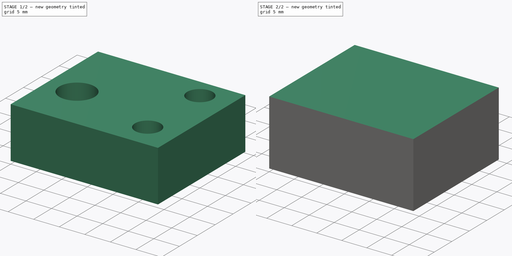
[diagram: build sequence overview — one tinted view per stage of 2, left to right]
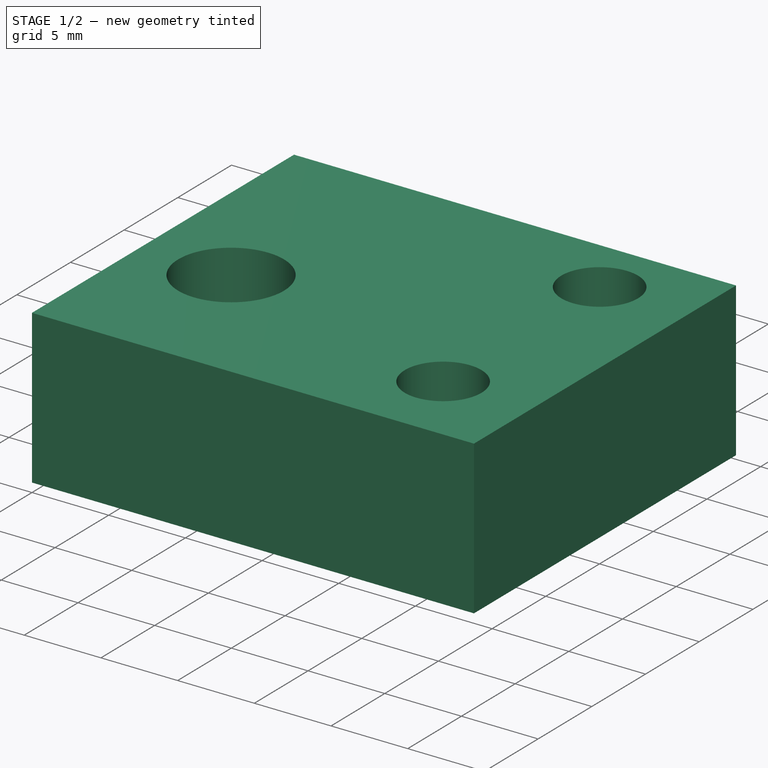
[diagram: stage 1 of 2 — iso view after this stage's code; geometry added in this stage tinted green]
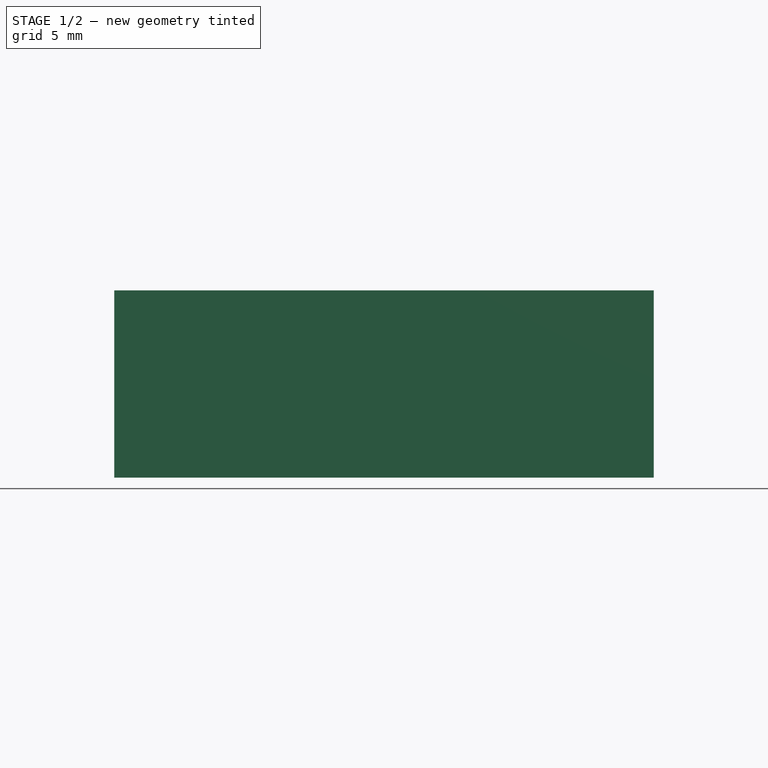
[diagram: stage 1 of 2 — front view after this stage's code; geometry added in this stage tinted green]
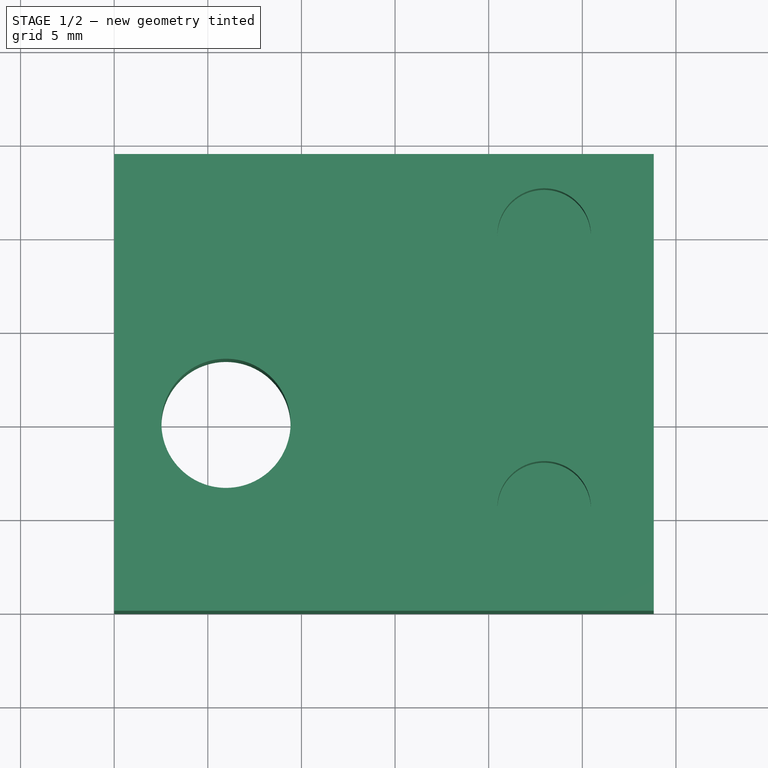
[diagram: stage 1 of 2 — top view after this stage's code; geometry added in this stage tinted green]
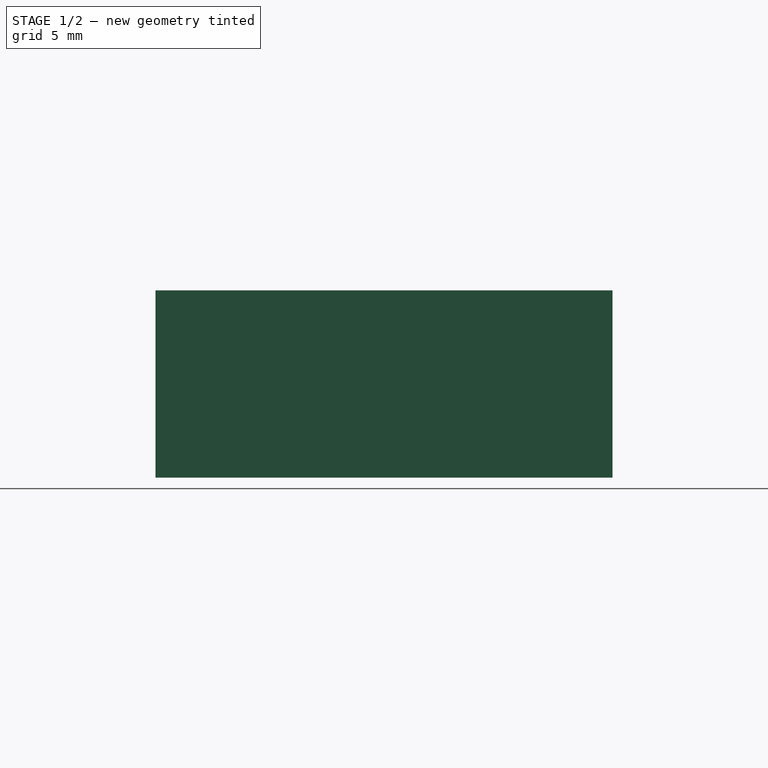
[diagram: stage 1 of 2 — right view after this stage's code; geometry added in this stage tinted green]
FCSTD DOCUMENT  (FreeCAD 0.20R29410 (Git))
Label: Assembly
License: All rights reserved
LicenseURL: http://en.wikipedia.org/wiki/All_rights_reserved
objects: App::FeaturePython×13, App::DocumentObjectGroupPython×5, App::DocumentObjectGroup×3, Sketcher::SketchObject×2, PartDesign::CoordinateSystem×2, App::Part×2, PartDesign::Pad×1, PartDesign::Pocket×1, App::Link×1
note: 8 computed .brp shape members not serialized (recipe doc carries the construction recipe); baked Part::Feature solids carry a one-line shape summary decoded from their .brp

FEATURE [Sketcher::SketchObject] Sketch002
  FullyConstrained = false
  MapMode = 2
  Placement = pos=(0,0,10) rot=(0,0,1;0rad)
  Support = -> [Sketch002]
  sketch-geometry (3):
    g0: Circle CenterX=22.9601 CenterY=5.49585 CenterZ=0 NormalX=0 NormalY=0 NormalZ=1 AngleXU=0 Radius=2.5
    g1: Circle CenterX=22.9601 CenterY=20.0674 CenterZ=0 NormalX=0 NormalY=0 NormalZ=1 AngleXU=0 Radius=2.5
    g2: LineSegment StartX=22.9601 StartY=5.49585 StartZ=0 EndX=22.9601 EndY=20.0674 EndZ=0
  constraints (5):
    c: Coincident(g2,g0)
    c: Coincident(g2,g1)
    c: Vertical(g2)
    c: Equal(g1,g0)
    c: Diameter(g1) = 5
FEATURE [PartDesign::Pocket] Pocket001
  Direction = (0,0,-1)
  Length = 5
  Length2 = 5
  Profile = -> Sketch002
  ReferenceAxis = -> Sketch002 [N_Axis]
  Type = 0
FEATURE [App::FeaturePython] AnnotationPlane  label="AP1"  # WARN: FeaturePython — macro-defined, semantics opaque (R4)
  Direction = (0,-1,0)
  Offset = -10
  PointWithOffset = (14.4087,10,5)
  faces = -> Pocket001 [Face1]
  p1 = (14.4087,0,5)
FEATURE [App::FeaturePython] GeometricTolerance  label="GT1"  # WARN: FeaturePython — macro-defined, semantics opaque (R4)
  Characteristic = Perpendicularity
  CharacteristicCode = ⏊
  CharacteristicIcon = :/dd/icons/Characteristic/perpendicularity.svg
  Circumference = true
  FeatureControlFrame = Projected tolerance zone
  FeatureControlFrameCode = Ⓜ
  FeatureControlFrameIcon = :/dd/icons/FeatureControlFrame/maximumMaterialCondition.svg
  ToleranceValue = -0.9
FEATURE [App::FeaturePython] GeometricTolerance001  label="GT2"  # WARN: FeaturePython — macro-defined, semantics opaque (R4)
  Characteristic = Cylindricity
  CharacteristicCode = ⌭
  CharacteristicIcon = :/dd/icons/Characteristic/cylindricity.svg
  Circumference = true
  FeatureControlFrameCode = Ⓟ
  FeatureControlFrameIcon = :/dd/icons/FeatureControlFrame/projectedToleranceZone.svg
  ToleranceValue = 0.5
FEATURE [App::FeaturePython] DatumFeature  label="A"  # WARN: FeaturePython — macro-defined, semantics opaque (R4)
FEATURE [App::DocumentObjectGroupPython] Annotation5  # scripted group (container) (typed FeaturePython)
  AP = -> AnnotationPlane
  DF = -> DatumFeature
  Direction = (0,0,-1)
  Group = -> [DatumFeature]
  circumferenceBool = false
  diameter = 0
  faces = -> [Pocket001]
  highLimit = 0
  lowLimit = 0
  p1 = (14.8825,10,0)
  selectedPoint = (15,10,0)
  spBool = true
  toleranceDiameter = 0
  toleranceSelectBool = true
FEATURE [App::FeaturePython] DatumSystem  label="DS1: A"  # WARN: FeaturePython — macro-defined, semantics opaque (R4)
  Primary = -> DatumFeature
FEATURE [App::FeaturePython] DatumFeature001  label="B"  # WARN: FeaturePython — macro-defined, semantics opaque (R4)
FEATURE [App::DocumentObjectGroupPython] Annotation2  # scripted group (container) (typed FeaturePython)
  AP = -> AnnotationPlane
  DF = -> DatumFeature001
  Direction = (0,0,1)
  GT = -> [GeometricTolerance,GeometricTolerance001]
  Group = -> [GeometricTolerance,GeometricTolerance001,DatumFeature001]
  circumferenceBool = false
  diameter = 6.89909
  faces = -> [Pocket001]
  highLimit = 0
  lowLimit = 0
  p1 = (14.3762,10,10)
  selectedPoint = (18.5,10,20)
  spBool = true
  toleranceDiameter = 0
  toleranceSelectBool = true
FEATURE [App::FeaturePython] DatumSystem001  label="DS2: B"  # WARN: FeaturePython — macro-defined, semantics opaque (R4)
  Primary = -> DatumFeature001
FEATURE [App::FeaturePython] DatumSystem002  label="DS3: A | B"  # WARN: FeaturePython — macro-defined, semantics opaque (R4)
  Primary = -> DatumFeature
  Secondary = -> DatumFeature001
FEATURE [App::FeaturePython] GeometricTolerance002  label="GT3"  # WARN: FeaturePython — macro-defined, semantics opaque (R4)
  Characteristic = Cylindricity
  CharacteristicCode = ⌭
  CharacteristicIcon = :/dd/icons/Characteristic/cylindricity.svg
  Circumference = true
  DS = -> DatumSystem002
  FeatureControlFrame = Maximum material condition
  ToleranceValue = 0.175
FEATURE [App::DocumentObjectGroupPython] Annotation4  # scripted group (container) (typed FeaturePython)
  AP = -> AnnotationPlane
  Direction = (0,-1,0)
  GT = -> [GeometricTolerance002]
  Group = -> [GeometricTolerance002]
  circumferenceBool = true
  diameter = 5
  faces = -> [Pocket001]
  highLimit = 0
  lowLimit = 0
  p1 = (25.4601,5.49585,10)
  selectedPoint = (30,0,15)
  spBool = true
  toleranceDiameter = 0.02
  toleranceSelectBool = true
FEATURE [App::FeaturePython] AnnotationPlane001  label="AP2"  # WARN: FeaturePython — macro-defined, semantics opaque (R4)
  Direction = (0,0,1)
  Offset = -4
  PointWithOffset = (14.3762,12.2946,6)
  faces = -> Pocket001 [Face5]
  p1 = (14.3762,12.2946,10)
FEATURE [App::FeaturePython] DatumFeature002  label="C"  # WARN: FeaturePython — macro-defined, semantics opaque (R4)
FEATURE [App::DocumentObjectGroupPython] Annotation4001  # scripted group (container) (typed FeaturePython)
  AP = -> AnnotationPlane
  DF = -> DatumFeature002
  Direction = (1,0,0)
  Group = -> [DatumFeature002]
  circumferenceBool = false
  diameter = 0
  faces = -> [Pocket001]
  highLimit = 0
  lowLimit = 0
  p1 = (28.8174,10,5)
  selectedPoint = (34.4087,10,6)
  spBool = true
  toleranceDiameter = 0
  toleranceSelectBool = true
FEATURE [App::FeaturePython] DatumSystem003  label="DS4: C"  # WARN: FeaturePython — macro-defined, semantics opaque (R4)
  Primary = -> DatumFeature002
FEATURE [App::DocumentObjectGroupPython] GDT  # scripted group (container) (typed FeaturePython)
  Group = -> [Annotation2,Annotation4,Annotation5,DatumSystem,DatumSystem001,DatumSystem002,AnnotationPlane001,Annotation4001,DatumSystem003]
FEATURE [PartDesign::CoordinateSystem] LCS_0
  AttacherType = Attacher::AttachEngine3D
  MapMode = 2
  Support = -> [X_Axis]
FEATURE [App::Part] Part
  Group = -> [LCS_0,Annotation2,Annotation5,Annotation4001,Annotation4,AnnotationPlane,GeometricTolerance001,GeometricTolerance002,DatumSystem,DatumSystem001,DatumSystem002,AnnotationPlane001,DatumFeature002,DatumFeature001,DatumFeature,DatumSystem003,GeometricTolerance,Sketch,Pad,Sketch002,Pocket001,GDT]
  Origin = -> Origin
FEATURE [App::DocumentObjectGroup] Parts
  Group = -> [Part]
FEATURE [PartDesign::CoordinateSystem] LCS_Origin
  AttacherType = Attacher::AttachEngine3D
  AttachmentOffset = pos=(0,16,0) rot=(0,0,1;0rad)
  MapMode = 2
  Placement = pos=(0,16,0) rot=(0,0,1;0rad)
  Support = -> [X_Axis002]
FEATURE [App::DocumentObjectGroup] Constraints
FEATURE [App::FeaturePython] Variables  # WARN: FeaturePython — macro-defined, semantics opaque (R4)
  Type = App::PropertyContainer
FEATURE [App::DocumentObjectGroup] Configurations
FEATURE [App::Link] Part001
  AssemblyType = Part::Link
  AttachedBy = #LCS_0
  AttachedTo = Parent Assembly#LCS_Origin
  AttachmentOffset = pos=(0,10,0) rot=(0,1,0;1.5708rad)
  LinkPlacement = pos=(0,26,0) rot=(0,1,0;1.5708rad)
  LinkedObject = -> Part
  Placement = pos=(0,26,0) rot=(0,1,0;1.5708rad)
  SolverId = Asm4EE
  expr: Placement = LCS_Origin.Placement * AttachmentOffset * LCS_0.Placement ^ -1
FEATURE [App::Part] Model
  AssemblyType = Part::Link
  Group = -> [LCS_Origin,Constraints,Variables,Configurations,Part001]
  Origin = -> Origin002
  Type = Assembly
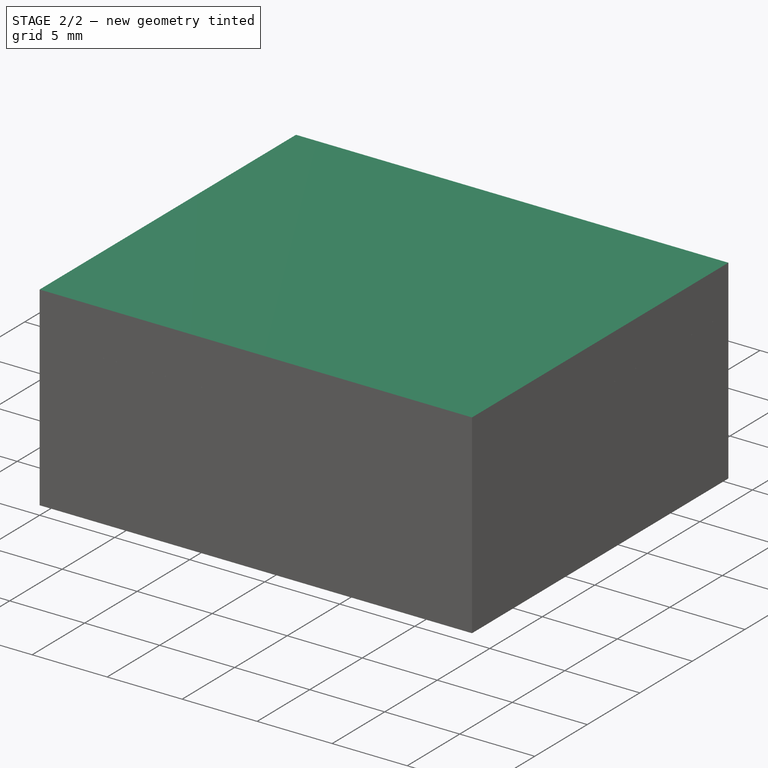
[diagram: stage 2 of 2 — iso view after this stage's code; geometry added in this stage tinted green]
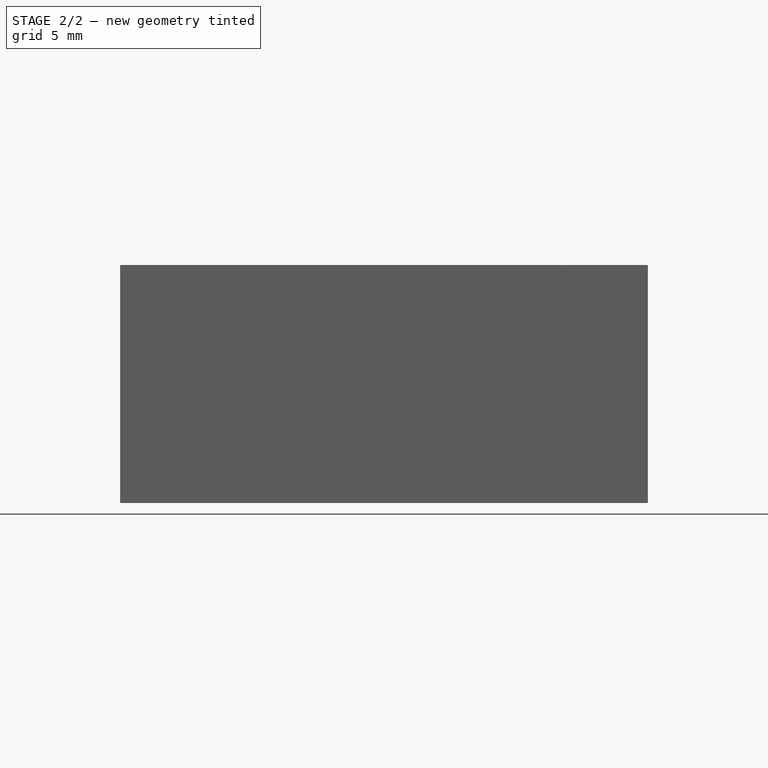
[diagram: stage 2 of 2 — front view after this stage's code; geometry added in this stage tinted green]
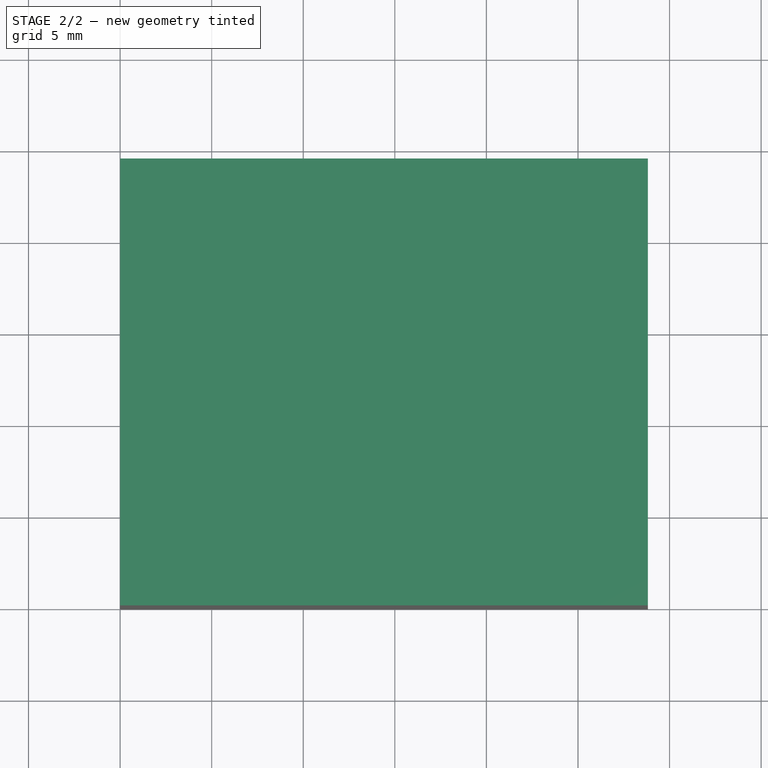
[diagram: stage 2 of 2 — top view after this stage's code; geometry added in this stage tinted green]
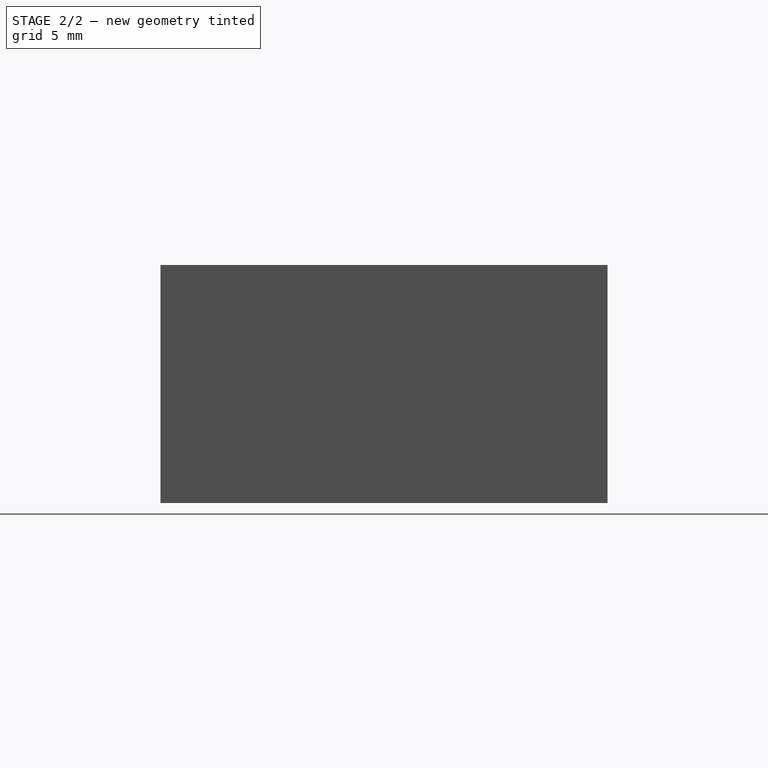
[diagram: stage 2 of 2 — right view after this stage's code; geometry added in this stage tinted green]
FEATURE [Sketcher::SketchObject] Sketch
  FullyConstrained = false
  MapMode = 2
  Support = -> [Sketch]
  sketch-geometry (4):
    g0: LineSegment StartX=0 StartY=0 StartZ=0 EndX=28.8174 EndY=0 EndZ=0
    g1: LineSegment StartX=28.8174 StartY=0 StartZ=0 EndX=28.8174 EndY=24.4012 EndZ=0
    g2: LineSegment StartX=28.8174 StartY=24.4012 StartZ=0 EndX=0 EndY=24.4012 EndZ=0
    g3: LineSegment StartX=0 StartY=24.4012 StartZ=0 EndX=0 EndY=0 EndZ=0
  constraints (9):
    c: Coincident(g0,g1)
    c: Coincident(g1,g2)
    c: Coincident(g2,g3)
    c: Coincident(g3,g0)
    c: Horizontal(g0)
    c: Horizontal(g2)
    c: Vertical(g1)
    c: Vertical(g3)
    c: Coincident(g0,g-1)
FEATURE [PartDesign::Pad] Pad
  Direction = (0,0,1)
  Length = 13
  Length2 = 10
  Profile = -> Sketch
  ReferenceAxis = -> Sketch [N_Axis]
  Type = 0
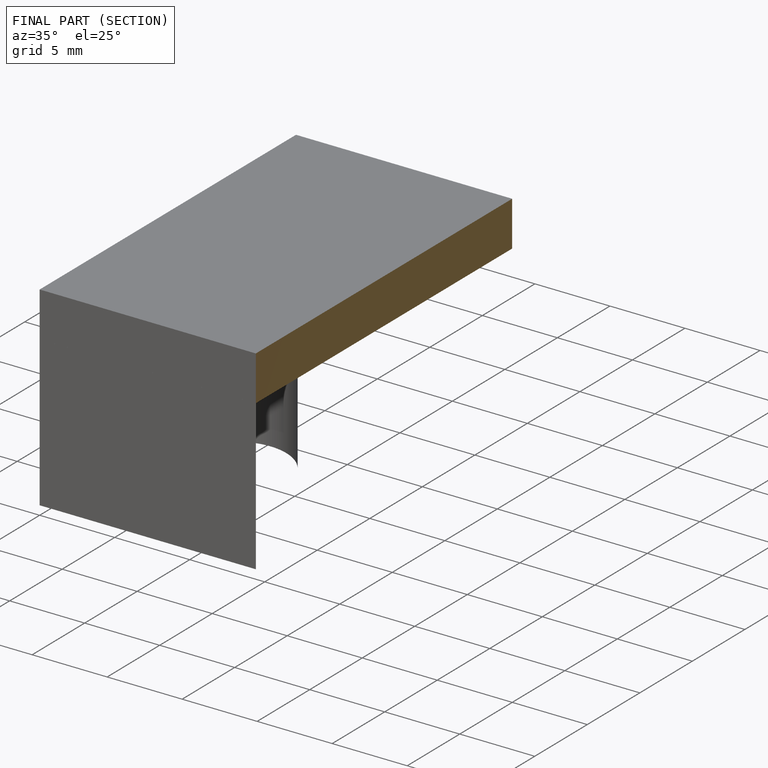
[diagram: finished part — half-section view (interior)]
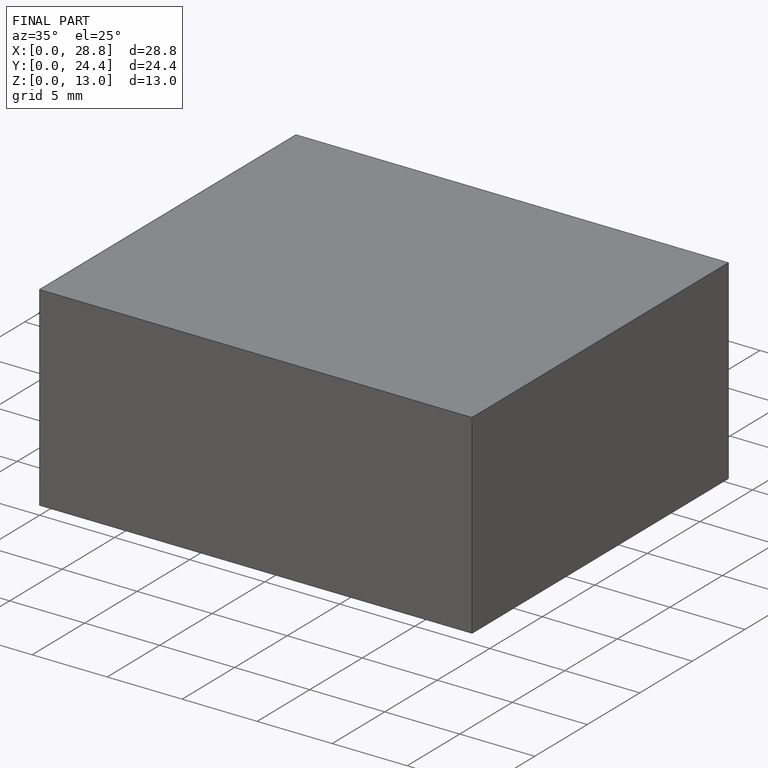
[diagram: finished part — iso view with bounding-box wireframe]
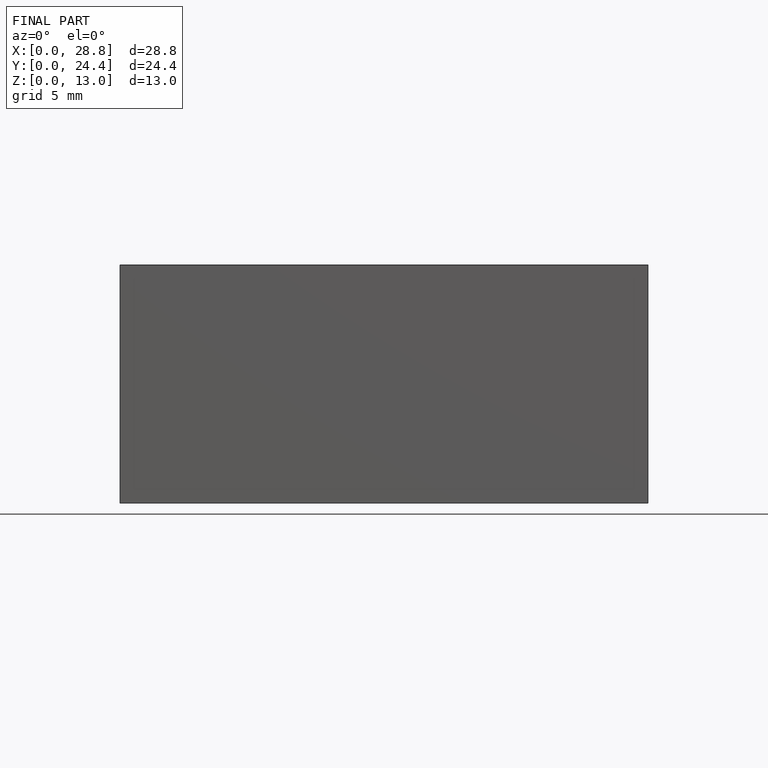
[diagram: finished part — front view with bounding-box wireframe]
